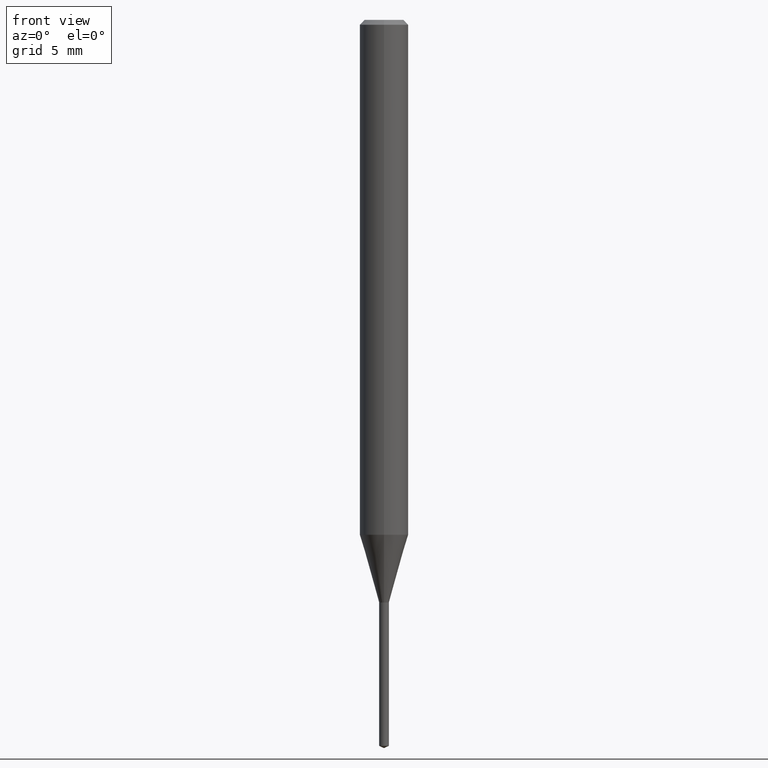
[diagram: clean part render]
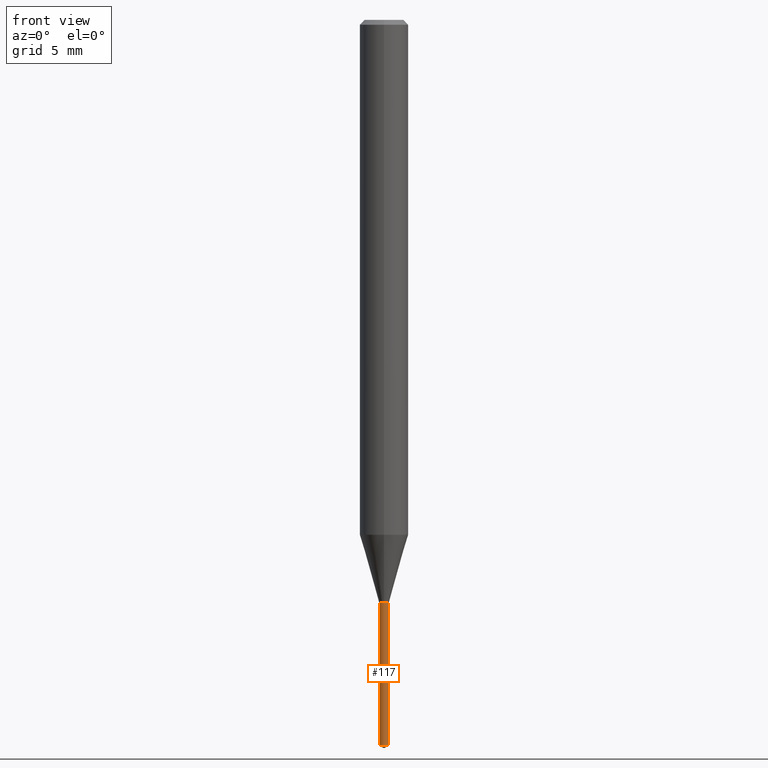
[diagram: same view with one face highlighted and labeled with its STEP entity id]
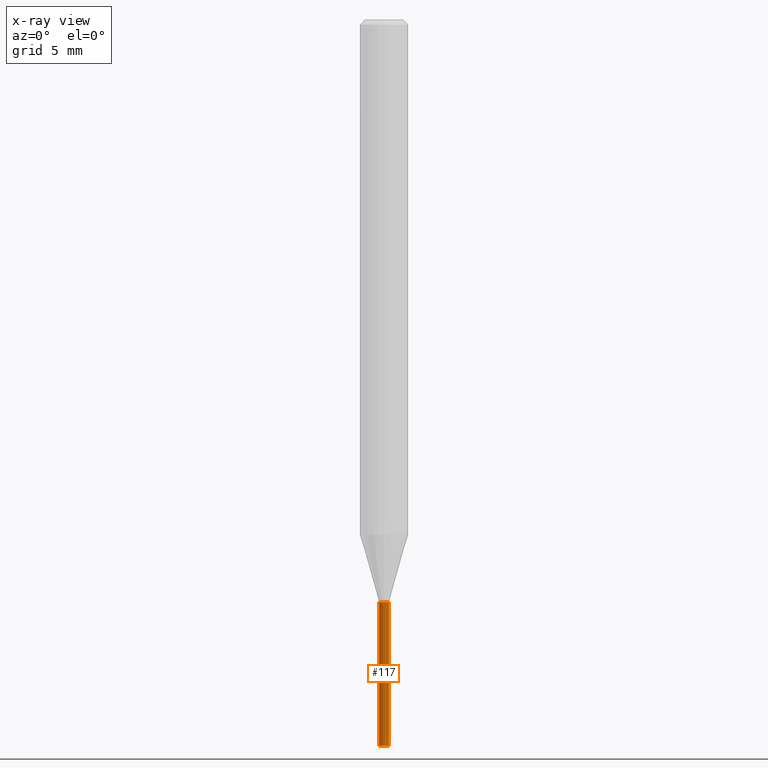
[diagram: x-ray of the same camera — body ghosted, the highlighted face saturated]
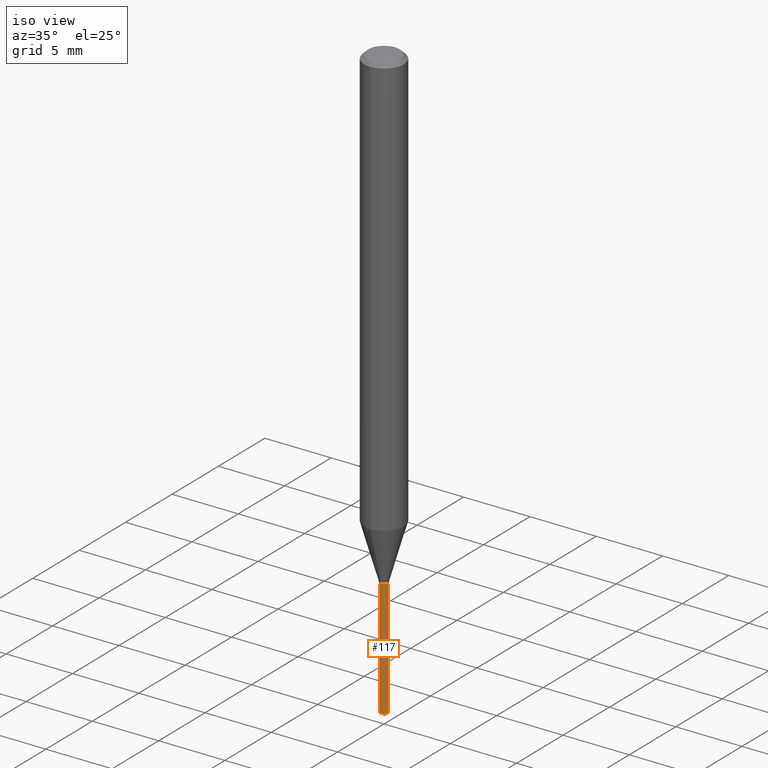
[diagram: same view with one face highlighted and labeled with its STEP entity id]
A machine part, front view. The second image highlights one B-rep face of the part: STEP entity #117.
The next image is the same camera in x-ray: the body ghosted, the highlighted face saturated — about 0% of this face is hidden behind the body in this view.
A second angle (iso view) of the same face is appended — the face is thin or edge-on in the first view.
In plain terms, the highlighted conical surface has half-angle 0.006 deg.
Its self-contained STEP definition (entity closure, byte-faithful):
#117=ADVANCED_FACE('',(#257),#258,.T.);
#119=VERTEX_POINT('',#260);
#127=EDGE_CURVE('',#155,#119,#270,.T.);
#135=EDGE_CURVE('',#181,#119,#278,.T.);
#147=EDGE_CURVE('',#155,#183,#291,.T.);
#155=VERTEX_POINT('',#300);
#181=VERTEX_POINT('',#327);
#183=VERTEX_POINT('',#329);
#189=EDGE_CURVE('',#183,#181,#335,.T.);
#257=FACE_OUTER_BOUND('',#403,.T.);
#258=CONICAL_SURFACE('',#404,0.3005,0.000112865444711671);
#260=CARTESIAN_POINT('',(-0.3,0.0,-44.8601077));
#270=CIRCLE('',#419,0.3);
#278=LINE('',#433,#434);
#291=LINE('',#450,#451);
#300=CARTESIAN_POINT('',(0.3,3.67381906146713E-017,-44.8601077));
#327=CARTESIAN_POINT('',(-0.301,0.0,-36.0));
#329=CARTESIAN_POINT('',(0.301,3.68606512500536E-017,-36.0));
#335=CIRCLE('',#510,0.301);
#403=EDGE_LOOP('',(#581,#582,#583,#584));
#404=AXIS2_PLACEMENT_3D('',#585,#586,#587);
#419=AXIS2_PLACEMENT_3D('',#605,#606,#607);
#433=CARTESIAN_POINT('',(-0.3005,-3.67994209323625E-017,-40.43005385));
#434=VECTOR('',#613,1.0);
#450=CARTESIAN_POINT('',(0.3005,3.67994209323624E-017,-40.43005385));
#451=VECTOR('',#625,1.0);
#510=AXIS2_PLACEMENT_3D('',#666,#667,#668);
#581=ORIENTED_EDGE('',*,*,#135,.T.);
#582=ORIENTED_EDGE('',*,*,#127,.F.);
#583=ORIENTED_EDGE('',*,*,#147,.T.);
#584=ORIENTED_EDGE('',*,*,#189,.T.);
#585=CARTESIAN_POINT('',(0.0,0.0,-40.43005385));
#586=DIRECTION('',(-0.0,-0.0,1.0));
#587=DIRECTION('',(-1.0,0.0,0.0));
#605=CARTESIAN_POINT('',(0.0,0.0,-44.8601077));
#606=DIRECTION('',(0.0,0.0,-1.0));
#607=DIRECTION('',(-1.0,0.0,0.0));
#613=DIRECTION('',(0.000112865444472046,1.38215740427454E-020,-0.999999993630696));
#625=DIRECTION('',(0.000112865444472046,1.38215740427454E-020,0.999999993630696));
#666=CARTESIAN_POINT('',(0.0,0.0,-36.0));
#667=DIRECTION('',(0.0,0.0,-1.0));
#668=DIRECTION('',(-1.0,0.0,0.0));